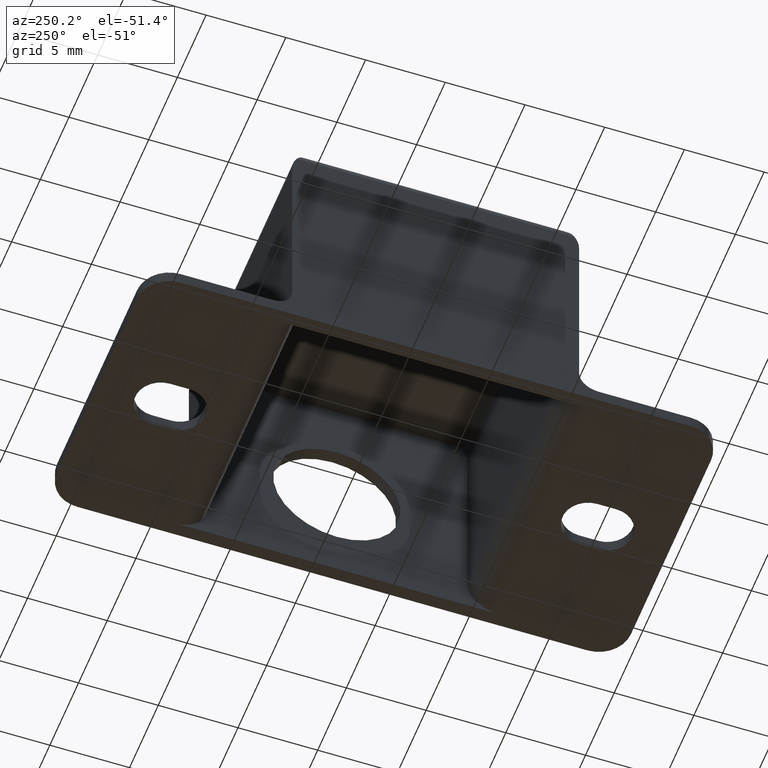
[diagram: clean part render]
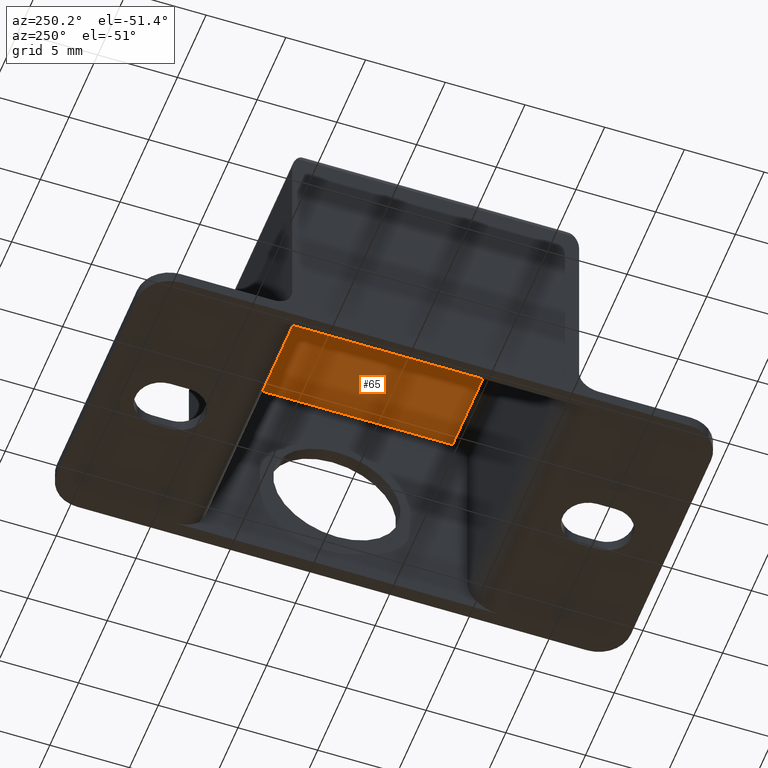
[diagram: same view with one face highlighted and labeled with its STEP entity id]
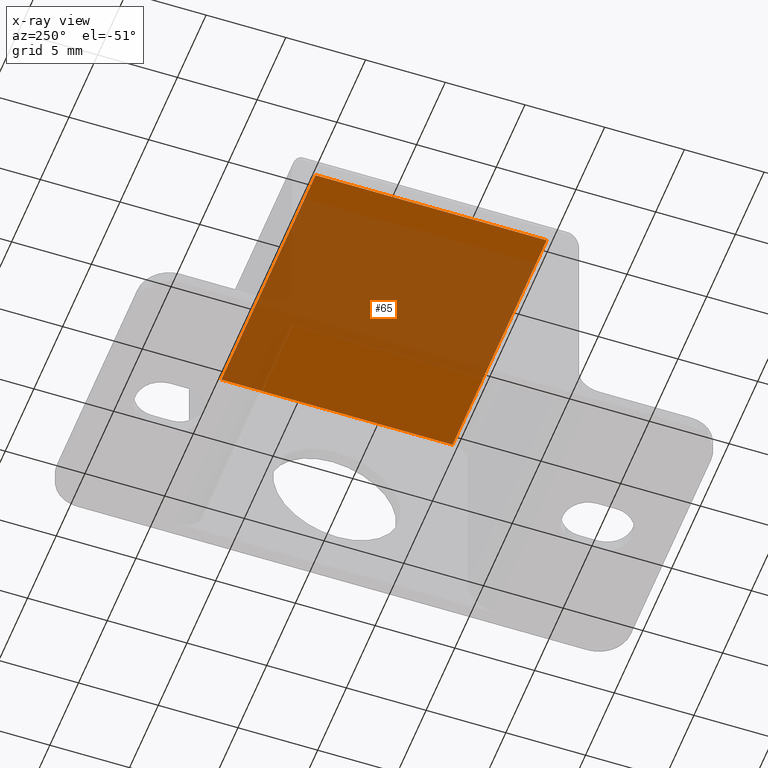
[diagram: x-ray of the same camera — body ghosted, the highlighted face saturated]
A machine part, auxiliary view. The second image highlights one B-rep face of the part: STEP entity #65.
The next image is the same camera in x-ray: the body ghosted, the highlighted face saturated — about 62% of this face is hidden behind the body in this view.
In plain terms, the highlighted planar face has unit normal (0, -0, 1).
Its self-contained STEP definition (entity closure, byte-faithful):
#65=ADVANCED_FACE('',(#337),#336,.F.);
#336=PLANE('',#611);
#337=FACE_OUTER_BOUND('',#612,.T.);
#608=CARTESIAN_POINT('',(-8.40000000000E-01,2.21000000000E+01,1.40000000000E+01));
#609=DIRECTION('',(0.00000000000E+00,-4.84167303950E-13,1.00000000000E+00));
#610=DIRECTION('',(0.00000000000E+00,-1.00000000000E+00,-4.84167303950E-13));
#611=AXIS2_PLACEMENT_3D('',#608,#609,#610);
#612=EDGE_LOOP('',(#838,#839,#840,#841));
#838=ORIENTED_EDGE('',*,*,#973,.T.);
#839=ORIENTED_EDGE('',*,*,#988,.F.);
#840=ORIENTED_EDGE('',*,*,#980,.F.);
#841=ORIENTED_EDGE('',*,*,#989,.T.);
#973=EDGE_CURVE('',#1537,#1530,#1538,.T.);
#980=EDGE_CURVE('',#1578,#1585,#1586,.T.);
#988=EDGE_CURVE('',#1585,#1530,#1638,.T.);
#989=EDGE_CURVE('',#1578,#1537,#1644,.T.);
#1530=VERTEX_POINT('',#2071);
#1537=VERTEX_POINT('',#2076);
#1538=LINE('',#2077,#2078);
#1578=VERTEX_POINT('',#2102);
#1585=VERTEX_POINT('',#2107);
#1586=LINE('',#2108,#2109);
#1638=LINE('',#2140,#2141);
#1644=LINE('',#2143,#2144);
#2071=CARTESIAN_POINT('',(8.00000000000E-01,2.06500000000E+01,1.40000000000E+01));
#2076=CARTESIAN_POINT('',(8.00000000000E-01,6.15000000000E+00,1.40000000000E+01));
#2077=CARTESIAN_POINT('',(8.00000000000E-01,6.15000000000E+00,1.40000000000E+01));
#2078=VECTOR('',#2079,1.45000000000E+01);
#2079=DIRECTION('',(0.00000000000E+00,1.00000000000E+00,4.84149119263E-13));
#2102=CARTESIAN_POINT('',(1.72000000000E+01,6.15000000000E+00,1.40000000000E+01));
#2107=CARTESIAN_POINT('',(1.72000000000E+01,2.06500000000E+01,1.40000000000E+01));
#2108=CARTESIAN_POINT('',(1.72000000000E+01,6.15000000000E+00,1.40000000000E+01));
#2109=VECTOR('',#2110,1.45000000000E+01);
#2110=DIRECTION('',(0.00000000000E+00,1.00000000000E+00,4.84149119263E-13));
#2140=CARTESIAN_POINT('',(1.72000000000E+01,2.06500000000E+01,1.40000000000E+01));
#2141=VECTOR('',#2142,1.64000000000E+01);
#2142=DIRECTION('',(-1.00000000000E+00,0.00000000000E+00,0.00000000000E+00));
#2143=CARTESIAN_POINT('',(1.72000000000E+01,6.15000000000E+00,1.40000000000E+01));
#2144=VECTOR('',#2145,1.64000000000E+01);
#2145=DIRECTION('',(-1.00000000000E+00,0.00000000000E+00,0.00000000000E+00));